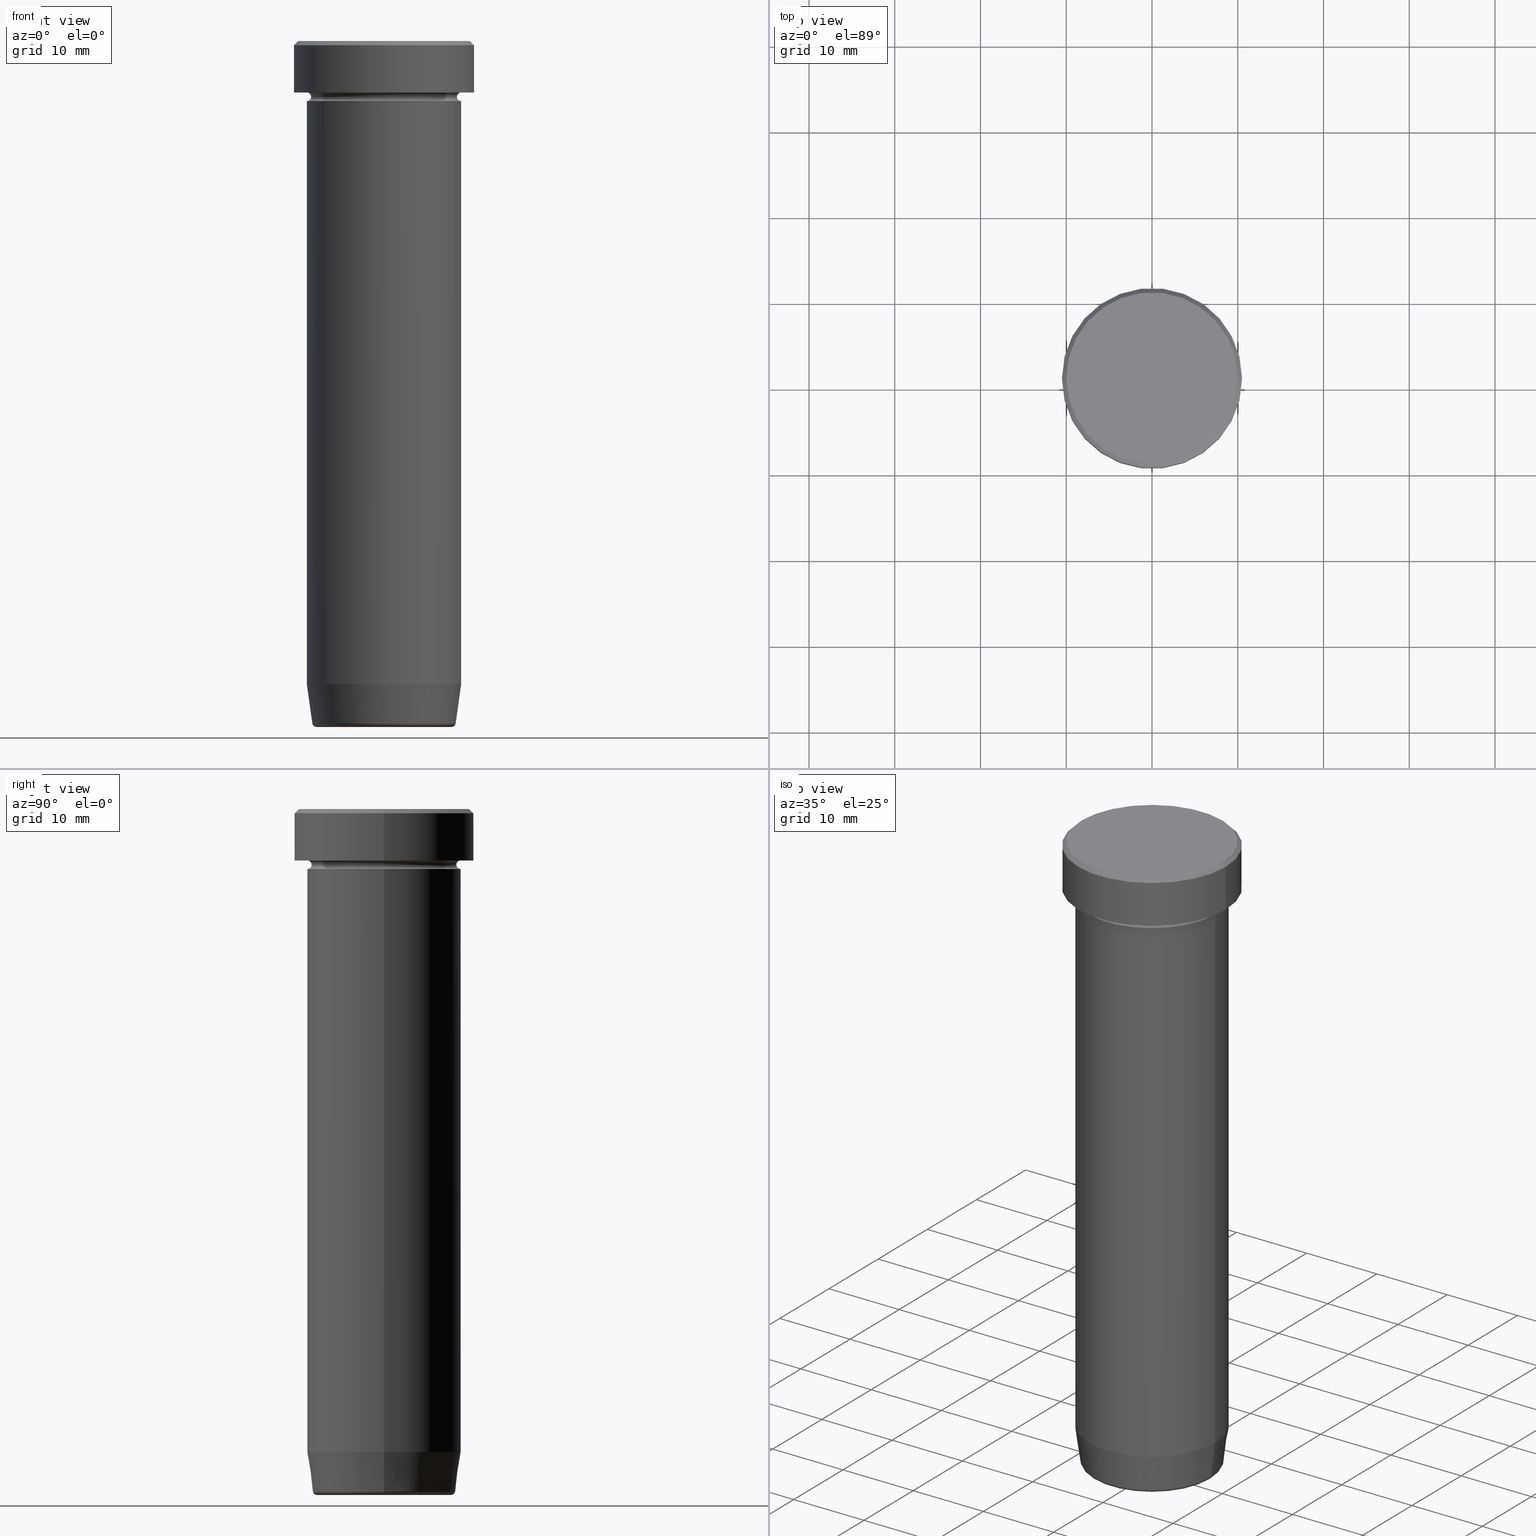
[diagram: canonical four-view strip — front | top / right | iso, engineering-drawing reading convention]
A machine part, canonical four-view strip (front | top / right | iso — engineering-drawing reading convention). The complete STEP part file that produces these views, byte-faithful:
ISO-10303-21;
HEADER;
FILE_DESCRIPTION (( 'STEP AP203' ),
    '1' );
FILE_NAME ('9424.STEP',
    '2024-01-02T19:34:15',
    ( '' ),
    ( '' ),
    'SwSTEP 2.0',
    'SolidWorks 2019',
    '' );
FILE_SCHEMA (( 'CONFIG_CONTROL_DESIGN' ));
ENDSEC;

DATA;
#1 = ORIENTED_EDGE ( 'NONE', *, *, #378, .T. ) ;
#2 = CC_DESIGN_SECURITY_CLASSIFICATION ( #102, ( #95 ) ) ;
#3 = DIRECTION ( 'NONE',  ( -0.000000000000000000, -0.000000000000000000, 1.000000000000000000 ) ) ;
#4 = ADVANCED_FACE ( 'NONE', ( #363 ), #333, .F. ) ;
#5 = CARTESIAN_POINT ( 'NONE',  ( 0.000000000000000000, 0.000000000000000000, -80.00000000000001421 ) ) ;
#6 = CIRCLE ( 'NONE', #346, 0.5000000000000004441 ) ;
#7 = CARTESIAN_POINT ( 'NONE',  ( 7.862652457579923038, 0.000000000000000000, -80.00000000000001421 ) ) ;
#8 = CIRCLE ( 'NONE', #453, 9.000000000000000000 ) ;
#9 = PERSON_AND_ORGANIZATION ( #331, #194 ) ;
#10 = ADVANCED_FACE ( 'NONE', ( #450, #589 ), #494, .T. ) ;
#11 = DIRECTION ( 'NONE',  ( -0.000000000000000000, -0.000000000000000000, 1.000000000000000000 ) ) ;
#12 = DIRECTION ( 'NONE',  ( 0.000000000000000000, 0.000000000000000000, -1.000000000000000000 ) ) ;
#13 = CC_DESIGN_DATE_AND_TIME_ASSIGNMENT ( #98, #595, ( #438 ) ) ;
#14 = ADVANCED_FACE ( 'NONE', ( #370 ), #325, .T. ) ;
#15 = CIRCLE ( 'NONE', #176, 10.50000000000000000 ) ;
#16 = AXIS2_PLACEMENT_3D ( 'NONE', #384, #11, #158 ) ;
#17 = DIRECTION ( 'NONE',  ( -0.000000000000000000, -0.000000000000000000, 1.000000000000000000 ) ) ;
#18 = CARTESIAN_POINT ( 'NONE',  ( 0.000000000000000000, 0.000000000000000000, -22.00000000000000000 ) ) ;
#19 = EDGE_LOOP ( 'NONE', ( #1, #318, #180, #432 ) ) ;
#20 = CC_DESIGN_PERSON_AND_ORGANIZATION_ASSIGNMENT ( #9, #231, ( #95 ) ) ;
#21 = DIRECTION ( 'NONE',  ( -0.7071067811865450192, 0.000000000000000000, -0.7071067811865500152 ) ) ;
#22 = CARTESIAN_POINT ( 'NONE',  ( -9.000000000000000000, 0.000000000000000000, -6.000000000000000000 ) ) ;
#23 = EDGE_LOOP ( 'NONE', ( #132, #369 ) ) ;
#24 = CYLINDRICAL_SURFACE ( 'NONE', #402, 10.50000000000000000 ) ;
#25 = CARTESIAN_POINT ( 'NONE',  ( 9.000000000000000000, 0.000000000000000000, 0.000000000000000000 ) ) ;
#26 = VERTEX_POINT ( 'NONE', #501 ) ;
#27 = CARTESIAN_POINT ( 'NONE',  ( 0.000000000000000000, 0.000000000000000000, -22.00000000000000000 ) ) ;
#28 = DIRECTION ( 'NONE',  ( 1.000000000000000000, 0.000000000000000000, 0.000000000000000000 ) ) ;
#29 = TOROIDAL_SURFACE ( 'NONE', #442, 9.000000000000000000, 0.5000000000000000000 ) ;
#30 = DIRECTION ( 'NONE',  ( -1.000000000000000000, 0.000000000000000000, -0.000000000000000000 ) ) ;
#31 = ORIENTED_EDGE ( 'NONE', *, *, #46, .F. ) ;
#32 = CARTESIAN_POINT ( 'NONE',  ( 0.000000000000000000, 0.000000000000000000, 0.000000000000000000 ) ) ;
#33 = CARTESIAN_POINT ( 'NONE',  ( 0.000000000000000000, 0.000000000000000000, -6.500000000000000888 ) ) ;
#34 = DIRECTION ( 'NONE',  ( -1.000000000000000000, 1.224646799147353454E-16, 0.000000000000000000 ) ) ;
#35 = APPROVAL_STATUS ( 'not_yet_approved' ) ;
#36 = VECTOR ( 'NONE', #253, 1000.000000000000000 ) ;
#37 = AXIS2_PLACEMENT_3D ( 'NONE', #582, #353, #212 ) ;
#38 = EDGE_LOOP ( 'NONE', ( #75, #94, #40, #298 ) ) ;
#39 = FACE_OUTER_BOUND ( 'NONE', #23, .T. ) ;
#40 = ORIENTED_EDGE ( 'NONE', *, *, #260, .T. ) ;
#41 = CLOSED_SHELL ( 'NONE', ( #398, #84, #4, #416, #42, #566, #86, #113, #10, #168, #294, #368, #268 ) ) ;
#42 = ADVANCED_FACE ( 'NONE', ( #281 ), #459, .T. ) ;
#43 = ORIENTED_EDGE ( 'NONE', *, *, #173, .F. ) ;
#44 = LINE ( 'NONE', #536, #115 ) ;
#45 = CALENDAR_DATE ( 2024, 2, 1 ) ;
#46 = EDGE_CURVE ( 'NONE', #436, #114, #159, .T. ) ;
#47 = PERSON_AND_ORGANIZATION ( #331, #194 ) ;
#48 = DIRECTION ( 'NONE',  ( 1.000000000000000000, 0.000000000000000000, 0.000000000000000000 ) ) ;
#49 = CIRCLE ( 'NONE', #377, 0.5000000000000004441 ) ;
#50 = CARTESIAN_POINT ( 'NONE',  ( 0.000000000000000000, 0.000000000000000000, 0.000000000000000000 ) ) ;
#51 = AXIS2_PLACEMENT_3D ( 'NONE', #283, #181, #227 ) ;
#52 = PERSON_AND_ORGANIZATION_ROLE ( 'creator' ) ;
#53 = FACE_OUTER_BOUND ( 'NONE', #579, .T. ) ;
#54 = ADVANCED_FACE ( 'NONE', ( #528 ), #355, .T. ) ;
#55 = EDGE_CURVE ( 'NONE', #258, #388, #386, .T. ) ;
#56 = EDGE_CURVE ( 'NONE', #185, #388, #127, .T. ) ;
#57 = CARTESIAN_POINT ( 'NONE',  ( -8.297295826488037207, 1.016125677548726751E-15, -80.00000000000001421 ) ) ;
#58 = CIRCLE ( 'NONE', #16, 9.000000000000000000 ) ;
#59 = DATE_AND_TIME ( #186, #171 ) ;
#60 = CARTESIAN_POINT ( 'NONE',  ( 0.000000000000000000, 0.000000000000000000, -6.500000000000000888 ) ) ;
#61 = EDGE_CURVE ( 'NONE', #228, #456, #478, .T. ) ;
#62 = DIRECTION ( 'NONE',  ( -0.000000000000000000, -0.000000000000000000, 1.000000000000000000 ) ) ;
#63 = DIRECTION ( 'NONE',  ( -0.000000000000000000, -0.000000000000000000, 1.000000000000000000 ) ) ;
#64 = APPROVAL_PERSON_ORGANIZATION ( #547, #561, #404 ) ;
#65 = ORIENTED_EDGE ( 'NONE', *, *, #286, .F. ) ;
#66 = DIRECTION ( 'NONE',  ( -0.000000000000000000, -0.000000000000000000, 1.000000000000000000 ) ) ;
#67 = DIRECTION ( 'NONE',  ( -0.1391731009600662428, 1.704378926181565534E-17, 0.9902680687415702510 ) ) ;
#68 = EDGE_LOOP ( 'NONE', ( #583, #172, #131, #266 ) ) ;
#69 = CIRCLE ( 'NONE', #107, 10.50000000000000000 ) ;
#70 = PLANE ( 'NONE',  #105 ) ;
#71 = DIRECTION ( 'NONE',  ( 1.000000000000000000, 0.000000000000000000, 0.000000000000000000 ) ) ;
#72 = ORIENTED_EDGE ( 'NONE', *, *, #297, .T. ) ;
#73 = DIRECTION ( 'NONE',  ( 1.000000000000000000, 0.000000000000000000, 0.000000000000000000 ) ) ;
#74 = EDGE_CURVE ( 'NONE', #134, #591, #120, .T. ) ;
#75 = ORIENTED_EDGE ( 'NONE', *, *, #150, .F. ) ;
#76 = CARTESIAN_POINT ( 'NONE',  ( 0.000000000000000000, 0.000000000000000000, -6.000000000000000000 ) ) ;
#77 = DIRECTION ( 'NONE',  ( 0.000000000000000000, 0.000000000000000000, -1.000000000000000000 ) ) ;
#78 = DIRECTION ( 'NONE',  ( 0.7071067811865450192, 8.659560562354902043E-17, -0.7071067811865500152 ) ) ;
#79 = AXIS2_PLACEMENT_3D ( 'NONE', #76, #256, #273 ) ;
#80 = FACE_OUTER_BOUND ( 'NONE', #510, .T. ) ;
#81 = AXIS2_PLACEMENT_3D ( 'NONE', #32, #537, #73 ) ;
#82 = MANIFOLD_SOLID_BREP ( 'Zaoblit4', #593 ) ;
#83 = ORIENTED_EDGE ( 'NONE', *, *, #379, .F. ) ;
#84 = ADVANCED_FACE ( 'NONE', ( #219 ), #259, .F. ) ;
#85 = PRODUCT ( '9424', '9424', '', ( #191 ) ) ;
#86 = ADVANCED_FACE ( 'NONE', ( #396 ), #437, .T. ) ;
#87 = ORIENTED_EDGE ( 'NONE', *, *, #471, .F. ) ;
#88 = VERTEX_POINT ( 'NONE', #246 ) ;
#89 = CIRCLE ( 'NONE', #493, 10.00000000000000178 ) ;
#90 = AXIS2_PLACEMENT_3D ( 'NONE', #129, #178, #345 ) ;
#91 = ORIENTED_EDGE ( 'NONE', *, *, #257, .T. ) ;
#92 = PERSON_AND_ORGANIZATION_ROLE ( 'design_owner' ) ;
#93 = EDGE_CURVE ( 'NONE', #477, #456, #205, .T. ) ;
#94 = ORIENTED_EDGE ( 'NONE', *, *, #441, .T. ) ;
#95 = PRODUCT_DEFINITION_FORMATION_WITH_SPECIFIED_SOURCE ( 'LIBOVOLN�', '', #85, .NOT_KNOWN. ) ;
#96 = DIRECTION ( 'NONE',  ( -0.000000000000000000, -0.000000000000000000, 1.000000000000000000 ) ) ;
#97 = DIRECTION ( 'NONE',  ( 0.000000000000000000, 0.000000000000000000, -1.000000000000000000 ) ) ;
#98 = DATE_AND_TIME ( #592, #276 ) ;
#99 = CIRCLE ( 'NONE', #534, 9.000000000000000000 ) ;
#100 = APPROVAL_DATE_TIME ( #508, #570 ) ;
#101 = LINE ( 'NONE', #57, #317 ) ;
#102 = SECURITY_CLASSIFICATION ( '', '', #288 ) ;
#103 = DIRECTION ( 'NONE',  ( -1.000000000000000000, 1.224646799147353454E-16, 0.000000000000000000 ) ) ;
#104 = ORIENTED_EDGE ( 'NONE', *, *, #152, .F. ) ;
#105 = AXIS2_PLACEMENT_3D ( 'NONE', #110, #211, #520 ) ;
#106 = DIRECTION ( 'NONE',  ( -0.000000000000000000, -0.000000000000000000, 1.000000000000000000 ) ) ;
#107 = AXIS2_PLACEMENT_3D ( 'NONE', #464, #12, #289 ) ;
#108 = CARTESIAN_POINT ( 'NONE',  ( 0.000000000000000000, 0.000000000000000000, 0.000000000000000000 ) ) ;
#109 = CARTESIAN_POINT ( 'NONE',  ( 0.000000000000000000, 0.000000000000000000, -6.000000000000000000 ) ) ;
#110 = CARTESIAN_POINT ( 'NONE',  ( 0.000000000000000000, 3.469446951953614189E-15, -80.00000000000001421 ) ) ;
#111 = APPLICATION_CONTEXT ( 'configuration controlled 3d designs of mechanical parts and assemblies' ) ;
#112 = DIRECTION ( 'NONE',  ( -1.000000000000000000, 0.000000000000000000, 0.000000000000000000 ) ) ;
#113 = ADVANCED_FACE ( 'NONE', ( #518 ), #24, .T. ) ;
#114 = VERTEX_POINT ( 'NONE', #157 ) ;
#115 = VECTOR ( 'NONE', #401, 1000.000000000000000 ) ;
#116 = AXIS2_PLACEMENT_3D ( 'NONE', #5, #77, #166 ) ;
#117 = ADVANCED_FACE ( 'NONE', ( #341 ), #70, .F. ) ;
#118 = CARTESIAN_POINT ( 'NONE',  ( 8.499999999999998224, 0.000000000000000000, -6.500000000000000888 ) ) ;
#119 = EDGE_LOOP ( 'NONE', ( #189, #385, #483, #222 ) ) ;
#120 = LINE ( 'NONE', #350, #533 ) ;
#121 = CARTESIAN_POINT ( 'NONE',  ( -9.000000000000000000, 1.102182119232617714E-15, 0.000000000000000000 ) ) ;
#122 = LOCAL_TIME ( 20, 34, 15.00000000000000000, #196 ) ;
#123 = EDGE_LOOP ( 'NONE', ( #226, #303 ) ) ;
#124 = DIRECTION ( 'NONE',  ( 1.000000000000000000, 0.000000000000000000, 0.000000000000000000 ) ) ;
#125 = DIRECTION ( 'NONE',  ( -0.000000000000000000, -0.000000000000000000, 1.000000000000000000 ) ) ;
#126 = ORIENTED_EDGE ( 'NONE', *, *, #338, .T. ) ;
#127 = CIRCLE ( 'NONE', #290, 9.000000000000000000 ) ;
#128 = AXIS2_PLACEMENT_3D ( 'NONE', #223, #310, #263 ) ;
#129 = CARTESIAN_POINT ( 'NONE',  ( 9.000000000000000000, 0.000000000000000000, -6.500000000000000888 ) ) ;
#130 = AXIS2_PLACEMENT_3D ( 'NONE', #235, #421, #300 ) ;
#131 = ORIENTED_EDGE ( 'NONE', *, *, #93, .T. ) ;
#132 = ORIENTED_EDGE ( 'NONE', *, *, #56, .T. ) ;
#133 = CARTESIAN_POINT ( 'NONE',  ( 9.000000000000000000, 0.000000000000000000, 0.000000000000000000 ) ) ;
#134 = VERTEX_POINT ( 'NONE', #250 ) ;
#135 = DIRECTION ( 'NONE',  ( 1.000000000000000000, 0.000000000000000000, 0.000000000000000000 ) ) ;
#136 = CIRCLE ( 'NONE', #460, 0.5000000000000004441 ) ;
#137 = ORIENTED_EDGE ( 'NONE', *, *, #445, .T. ) ;
#138 = ORIENTED_EDGE ( 'NONE', *, *, #375, .T. ) ;
#139 = LOCAL_TIME ( 20, 34, 15.00000000000000000, #184 ) ;
#140 = CYLINDRICAL_SURFACE ( 'NONE', #513, 9.000000000000000000 ) ;
#141 = PLANE ( 'NONE',  #51 ) ;
#142 = UNCERTAINTY_MEASURE_WITH_UNIT (LENGTH_MEASURE( 1.000000000000000082E-05 ), #554, 'distance_accuracy_value', 'NONE');
#143 = EDGE_CURVE ( 'NONE', #311, #477, #241, .T. ) ;
#144 = DIRECTION ( 'NONE',  ( 0.000000000000000000, 0.000000000000000000, -1.000000000000000000 ) ) ;
#145 = AXIS2_PLACEMENT_3D ( 'NONE', #307, #429, #215 ) ;
#146 = CIRCLE ( 'NONE', #410, 9.000000000000000000 ) ;
#147 = CARTESIAN_POINT ( 'NONE',  ( 0.000000000000000000, 0.000000000000000000, -75.00000000000001421 ) ) ;
#148 = CARTESIAN_POINT ( 'NONE',  ( -9.000000000000000000, 0.000000000000000000, -6.500000000000000888 ) ) ;
#149 = ORIENTED_EDGE ( 'NONE', *, *, #413, .T. ) ;
#150 = EDGE_CURVE ( 'NONE', #472, #512, #49, .T. ) ;
#151 = DIRECTION ( 'NONE',  ( -0.000000000000000000, -0.000000000000000000, 1.000000000000000000 ) ) ;
#152 = EDGE_CURVE ( 'NONE', #456, #591, #15, .T. ) ;
#153 = AXIS2_PLACEMENT_3D ( 'NONE', #148, #237, #144 ) ;
#154 = AXIS2_PLACEMENT_3D ( 'NONE', #479, #435, #30 ) ;
#155 = FACE_OUTER_BOUND ( 'NONE', #38, .T. ) ;
#156 = ORIENTED_EDGE ( 'NONE', *, *, #375, .F. ) ;
#157 = CARTESIAN_POINT ( 'NONE',  ( -8.357786491950706775, 1.062857883382529722E-15, -79.56958655048006790 ) ) ;
#158 = DIRECTION ( 'NONE',  ( 1.000000000000000000, 0.000000000000000000, 0.000000000000000000 ) ) ;
#159 = CIRCLE ( 'NONE', #574, 8.357786491950706775 ) ;
#160 = EDGE_LOOP ( 'NONE', ( #349, #137 ) ) ;
#161 = EDGE_CURVE ( 'NONE', #512, #487, #381, .T. ) ;
#162 = DIRECTION ( 'NONE',  ( 0.000000000000000000, -0.000000000000000000, 1.000000000000000000 ) ) ;
#163 = DIRECTION ( 'NONE',  ( 0.000000000000000000, 0.000000000000000000, -1.000000000000000000 ) ) ;
#164 = CIRCLE ( 'NONE', #248, 8.357786491950706775 ) ;
#165 = CARTESIAN_POINT ( 'NONE',  ( 0.000000000000000000, 0.000000000000000000, -0.5000000000000023315 ) ) ;
#166 = DIRECTION ( 'NONE',  ( 1.000000000000000000, 0.000000000000000000, 0.000000000000000000 ) ) ;
#167 = VERTEX_POINT ( 'NONE', #585 ) ;
#168 = ADVANCED_FACE ( 'NONE', ( #454 ), #190, .T. ) ;
#169 = DIRECTION ( 'NONE',  ( -0.000000000000000000, -0.000000000000000000, 1.000000000000000000 ) ) ;
#170 = DIRECTION ( 'NONE',  ( -0.000000000000000000, -0.000000000000000000, 1.000000000000000000 ) ) ;
#171 = LOCAL_TIME ( 20, 34, 15.00000000000000000, #278 ) ;
#172 = ORIENTED_EDGE ( 'NONE', *, *, #143, .T. ) ;
#173 = EDGE_CURVE ( 'NONE', #436, #491, #44, .T. ) ;
#174 = DIRECTION ( 'NONE',  ( 0.000000000000000000, 0.000000000000000000, -1.000000000000000000 ) ) ;
#175 = EDGE_LOOP ( 'NONE', ( #255, #524, #31, #332 ) ) ;
#176 = AXIS2_PLACEMENT_3D ( 'NONE', #165, #576, #481 ) ;
#177 = VECTOR ( 'NONE', #216, 1000.000000000000000 ) ;
#178 = DIRECTION ( 'NONE',  ( 0.000000000000000000, -1.000000000000000000, 0.000000000000000000 ) ) ;
#179 = DIRECTION ( 'NONE',  ( 1.000000000000000000, 0.000000000000000000, 0.000000000000000000 ) ) ;
#180 = ORIENTED_EDGE ( 'NONE', *, *, #374, .F. ) ;
#181 = DIRECTION ( 'NONE',  ( 0.000000000000000000, 0.000000000000000000, -1.000000000000000000 ) ) ;
#182 = ORIENTED_EDGE ( 'NONE', *, *, #588, .T. ) ;
#183 = EDGE_CURVE ( 'NONE', #543, #207, #6, .T. ) ;
#184 = COORDINATED_UNIVERSAL_TIME_OFFSET ( 1, 0, .AHEAD. ) ;
#185 = VERTEX_POINT ( 'NONE', #590 ) ;
#186 = CALENDAR_DATE ( 2024, 2, 1 ) ;
#187 = DIRECTION ( 'NONE',  ( -0.000000000000000000, -0.000000000000000000, 1.000000000000000000 ) ) ;
#188 = CIRCLE ( 'NONE', #419, 8.499999999999998224 ) ;
#189 = ORIENTED_EDGE ( 'NONE', *, *, #378, .F. ) ;
#190 = CYLINDRICAL_SURFACE ( 'NONE', #128, 9.000000000000000000 ) ;
#191 = MECHANICAL_CONTEXT ( 'NONE', #444, 'mechanical' ) ;
#192 = FACE_OUTER_BOUND ( 'NONE', #340, .T. ) ;
#193 = CARTESIAN_POINT ( 'NONE',  ( 0.000000000000000000, 0.000000000000000000, -79.50000000000001421 ) ) ;
#194 = ORGANIZATION ( 'NEUR�EN�', 'NEUR�EN�', '' ) ;
#195 = APPROVAL_STATUS ( 'not_yet_approved' ) ;
#196 = COORDINATED_UNIVERSAL_TIME_OFFSET ( 1, 0, .AHEAD. ) ;
#197 = AXIS2_PLACEMENT_3D ( 'NONE', #475, #163, #71 ) ;
#198 = SHAPE_DEFINITION_REPRESENTATION ( #312, #372 ) ;
#199 = CARTESIAN_POINT ( 'NONE',  ( 0.000000000000000000, 0.000000000000000000, 0.000000000000000000 ) ) ;
#200 = FACE_OUTER_BOUND ( 'NONE', #269, .T. ) ;
#201 = AXIS2_PLACEMENT_3D ( 'NONE', #327, #503, #334 ) ;
#202 = CONICAL_SURFACE ( 'NONE', #504, 8.297295826488037207, 0.1396263401595471687 ) ;
#203 = AXIS2_PLACEMENT_3D ( 'NONE', #199, #514, #559 ) ;
#204 = VERTEX_POINT ( 'NONE', #362 ) ;
#205 = LINE ( 'NONE', #573, #36 ) ;
#206 = DIRECTION ( 'NONE',  ( 1.000000000000000000, 0.000000000000000000, 0.000000000000000000 ) ) ;
#207 = VERTEX_POINT ( 'NONE', #551 ) ;
#208 = DIRECTION ( 'NONE',  ( -1.224646799147353207E-16, 1.000000000000000000, 0.000000000000000000 ) ) ;
#209 = DIRECTION ( 'NONE',  ( 0.000000000000000000, -1.000000000000000000, 0.000000000000000000 ) ) ;
#210 = EDGE_LOOP ( 'NONE', ( #238, #403, #552, #43 ) ) ;
#211 = DIRECTION ( 'NONE',  ( 0.000000000000000000, -0.000000000000000000, 1.000000000000000000 ) ) ;
#212 = DIRECTION ( 'NONE',  ( 1.000000000000000000, 0.000000000000000000, 0.000000000000000000 ) ) ;
#213 = ORIENTED_EDGE ( 'NONE', *, *, #277, .T. ) ;
#214 = AXIS2_PLACEMENT_3D ( 'NONE', #50, #169, #425 ) ;
#215 = DIRECTION ( 'NONE',  ( 1.000000000000000000, 0.000000000000000000, 0.000000000000000000 ) ) ;
#216 = DIRECTION ( 'NONE',  ( -0.000000000000000000, -0.000000000000000000, 1.000000000000000000 ) ) ;
#217 = DIRECTION ( 'NONE',  ( 1.000000000000000000, 0.000000000000000000, 0.000000000000000000 ) ) ;
#218 = ORIENTED_EDGE ( 'NONE', *, *, #321, .F. ) ;
#219 = FACE_OUTER_BOUND ( 'NONE', #19, .T. ) ;
#220 = CYLINDRICAL_SURFACE ( 'NONE', #81, 9.000000000000000000 ) ;
#221 = CC_DESIGN_APPROVAL ( #570, ( #102 ) ) ;
#222 = ORIENTED_EDGE ( 'NONE', *, *, #538, .F. ) ;
#223 = CARTESIAN_POINT ( 'NONE',  ( 0.000000000000000000, 0.000000000000000000, 0.000000000000000000 ) ) ;
#224 = DIRECTION ( 'NONE',  ( -0.000000000000000000, -0.000000000000000000, 1.000000000000000000 ) ) ;
#225 = CIRCLE ( 'NONE', #116, 7.862652457579923038 ) ;
#226 = ORIENTED_EDGE ( 'NONE', *, *, #577, .F. ) ;
#227 = DIRECTION ( 'NONE',  ( -1.000000000000000000, 0.000000000000000000, -0.000000000000000000 ) ) ;
#228 = VERTEX_POINT ( 'NONE', #509 ) ;
#229 = CALENDAR_DATE ( 2024, 2, 1 ) ;
#230 = VERTEX_POINT ( 'NONE', #7 ) ;
#231 = PERSON_AND_ORGANIZATION_ROLE ( 'design_supplier' ) ;
#232 =( NAMED_UNIT ( * ) SI_UNIT ( $, .STERADIAN. ) SOLID_ANGLE_UNIT ( ) );
#233 = CIRCLE ( 'NONE', #282, 10.00000000000000178 ) ;
#234 = CIRCLE ( 'NONE', #197, 7.862652457579923038 ) ;
#235 = CARTESIAN_POINT ( 'NONE',  ( 0.000000000000000000, 0.000000000000000000, -7.000000000000000000 ) ) ;
#236 = DIRECTION ( 'NONE',  ( -0.000000000000000000, -0.000000000000000000, 1.000000000000000000 ) ) ;
#237 = DIRECTION ( 'NONE',  ( -0.000000000000000000, -1.000000000000000000, -0.000000000000000000 ) ) ;
#238 = ORIENTED_EDGE ( 'NONE', *, *, #46, .T. ) ;
#239 = APPROVAL_STATUS ( 'not_yet_approved' ) ;
#240 = DIRECTION ( 'NONE',  ( -0.000000000000000000, -0.000000000000000000, 1.000000000000000000 ) ) ;
#241 = CIRCLE ( 'NONE', #145, 10.50000000000000000 ) ;
#242 = ORIENTED_EDGE ( 'NONE', *, *, #577, .T. ) ;
#243 = DIRECTION ( 'NONE',  ( -0.000000000000000000, -0.000000000000000000, 1.000000000000000000 ) ) ;
#244 = AXIS2_PLACEMENT_3D ( 'NONE', #323, #97, #411 ) ;
#245 = ORIENTED_EDGE ( 'NONE', *, *, #93, .F. ) ;
#246 = CARTESIAN_POINT ( 'NONE',  ( -7.862652457579923038, 9.932154320153869973E-16, -80.00000000000001421 ) ) ;
#247 = FACE_OUTER_BOUND ( 'NONE', #400, .T. ) ;
#248 = AXIS2_PLACEMENT_3D ( 'NONE', #351, #125, #485 ) ;
#249 = ORIENTED_EDGE ( 'NONE', *, *, #563, .T. ) ;
#250 = CARTESIAN_POINT ( 'NONE',  ( -10.00000000000000178, 0.000000000000000000, 0.000000000000000000 ) ) ;
#251 = ORIENTED_EDGE ( 'NONE', *, *, #563, .F. ) ;
#252 = PRODUCT_RELATED_PRODUCT_CATEGORY ( 'detail', '', ( #85 ) ) ;
#253 = DIRECTION ( 'NONE',  ( -0.000000000000000000, -0.000000000000000000, 1.000000000000000000 ) ) ;
#254 = CARTESIAN_POINT ( 'NONE',  ( -8.499999999999998224, 1.071565949253933927E-15, -6.500000000000000888 ) ) ;
#255 = ORIENTED_EDGE ( 'NONE', *, *, #445, .F. ) ;
#256 = DIRECTION ( 'NONE',  ( -0.000000000000000000, -0.000000000000000000, 1.000000000000000000 ) ) ;
#257 = EDGE_CURVE ( 'NONE', #228, #134, #89, .T. ) ;
#258 = VERTEX_POINT ( 'NONE', #422 ) ;
#259 = TOROIDAL_SURFACE ( 'NONE', #315, 9.000000000000000000, 0.5000000000000000000 ) ;
#260 = EDGE_CURVE ( 'NONE', #543, #487, #409, .T. ) ;
#261 = CIRCLE ( 'NONE', #564, 8.499999999999998224 ) ;
#262 = ORIENTED_EDGE ( 'NONE', *, *, #517, .T. ) ;
#263 = DIRECTION ( 'NONE',  ( 1.000000000000000000, 0.000000000000000000, 0.000000000000000000 ) ) ;
#264 = CARTESIAN_POINT ( 'NONE',  ( 0.000000000000000000, 0.000000000000000000, -80.00000000000001421 ) ) ;
#265 = APPROVAL_PERSON_ORGANIZATION ( #274, #584, #267 ) ;
#266 = ORIENTED_EDGE ( 'NONE', *, *, #152, .T. ) ;
#267 = APPROVAL_ROLE ( '' ) ;
#268 = ADVANCED_FACE ( 'NONE', ( #53 ), #562, .T. ) ;
#269 = EDGE_LOOP ( 'NONE', ( #335, #72, #357, #424 ) ) ;
#270 = AXIS2_PLACEMENT_3D ( 'NONE', #308, #162, #469 ) ;
#271 = AXIS2_PLACEMENT_3D ( 'NONE', #360, #415, #48 ) ;
#272 = DIRECTION ( 'NONE',  ( 1.000000000000000000, 0.000000000000000000, 0.000000000000000000 ) ) ;
#273 = DIRECTION ( 'NONE',  ( -1.000000000000000000, 0.000000000000000000, 0.000000000000000000 ) ) ;
#274 = PERSON_AND_ORGANIZATION ( #331, #194 ) ;
#275 = ORIENTED_EDGE ( 'NONE', *, *, #558, .T. ) ;
#276 = LOCAL_TIME ( 20, 34, 15.00000000000000000, #373 ) ;
#277 = EDGE_CURVE ( 'NONE', #134, #228, #233, .T. ) ;
#278 = COORDINATED_UNIVERSAL_TIME_OFFSET ( 1, 0, .AHEAD. ) ;
#279 = MANIFOLD_SOLID_BREP ( 'Zkosen�1', #41 ) ;
#280 = ADVANCED_FACE ( 'NONE', ( #200 ), #140, .T. ) ;
#281 = FACE_OUTER_BOUND ( 'NONE', #392, .T. ) ;
#282 = AXIS2_PLACEMENT_3D ( 'NONE', #417, #106, #292 ) ;
#283 = CARTESIAN_POINT ( 'NONE',  ( 0.000000000000000000, 0.000000000000000000, -22.00000000000000000 ) ) ;
#284 = CIRCLE ( 'NONE', #575, 9.000000000000000000 ) ;
#285 = LINE ( 'NONE', #330, #302 ) ;
#286 = EDGE_CURVE ( 'NONE', #114, #258, #101, .T. ) ;
#287 = CC_DESIGN_PERSON_AND_ORGANIZATION_ASSIGNMENT ( #47, #92, ( #85 ) ) ;
#288 = SECURITY_CLASSIFICATION_LEVEL ( 'unclassified' ) ;
#289 = DIRECTION ( 'NONE',  ( 1.000000000000000000, 0.000000000000000000, 0.000000000000000000 ) ) ;
#290 = AXIS2_PLACEMENT_3D ( 'NONE', #27, #17, #124 ) ;
#291 = CIRCLE ( 'NONE', #130, 9.000000000000000000 ) ;
#292 = DIRECTION ( 'NONE',  ( 1.000000000000000000, 0.000000000000000000, 0.000000000000000000 ) ) ;
#293 = DIRECTION ( 'NONE',  ( -0.000000000000000000, -0.000000000000000000, 1.000000000000000000 ) ) ;
#294 = ADVANCED_FACE ( 'NONE', ( #489 ), #587, .F. ) ;
#295 = CARTESIAN_POINT ( 'NONE',  ( 0.000000000000000000, 0.000000000000000000, -79.50000000000001421 ) ) ;
#296 = DIRECTION ( 'NONE',  ( 1.000000000000000000, 0.000000000000000000, 0.000000000000000000 ) ) ;
#297 = EDGE_CURVE ( 'NONE', #258, #491, #99, .T. ) ;
#298 = ORIENTED_EDGE ( 'NONE', *, *, #161, .F. ) ;
#299 = DIRECTION ( 'NONE',  ( 1.000000000000000000, 0.000000000000000000, 0.000000000000000000 ) ) ;
#300 = DIRECTION ( 'NONE',  ( 1.000000000000000000, 0.000000000000000000, 0.000000000000000000 ) ) ;
#301 = CC_DESIGN_DATE_AND_TIME_ASSIGNMENT ( #59, #365, ( #102 ) ) ;
#302 = VECTOR ( 'NONE', #240, 1000.000000000000000 ) ;
#303 = ORIENTED_EDGE ( 'NONE', *, *, #143, .F. ) ;
#304 = DIRECTION ( 'NONE',  ( -0.000000000000000000, -0.000000000000000000, 1.000000000000000000 ) ) ;
#305 = FACE_OUTER_BOUND ( 'NONE', #210, .T. ) ;
#306 = ORIENTED_EDGE ( 'NONE', *, *, #183, .F. ) ;
#307 = CARTESIAN_POINT ( 'NONE',  ( 0.000000000000000000, 0.000000000000000000, -6.000000000000000000 ) ) ;
#308 = CARTESIAN_POINT ( 'NONE',  ( 0.000000000000000000, 0.000000000000000000, 0.000000000000000000 ) ) ;
#309 = CIRCLE ( 'NONE', #90, 0.5000000000000004441 ) ;
#310 = DIRECTION ( 'NONE',  ( -0.000000000000000000, -0.000000000000000000, 1.000000000000000000 ) ) ;
#311 = VERTEX_POINT ( 'NONE', #539 ) ;
#312 = PRODUCT_DEFINITION_SHAPE ( 'NONE', 'NONE',  #438 ) ;
#313 = EDGE_LOOP ( 'NONE', ( #275, #343, #156, #364 ) ) ;
#314 = AXIS2_PLACEMENT_3D ( 'NONE', #33, #224, #272 ) ;
#315 = AXIS2_PLACEMENT_3D ( 'NONE', #525, #352, #434 ) ;
#316 = ADVANCED_FACE ( 'NONE', ( #192 ), #328, .T. ) ;
#317 = VECTOR ( 'NONE', #67, 1000.000000000000000 ) ;
#318 = ORIENTED_EDGE ( 'NONE', *, *, #150, .T. ) ;
#319 = PERSON_AND_ORGANIZATION_ROLE ( 'classification_officer' ) ;
#320 = CARTESIAN_POINT ( 'NONE',  ( -10.50000000000000000, 1.285879139104720831E-15, -0.5000000000000023315 ) ) ;
#321 = EDGE_CURVE ( 'NONE', #207, #204, #291, .T. ) ;
#322 = CC_DESIGN_APPROVAL ( #584, ( #438 ) ) ;
#323 = CARTESIAN_POINT ( 'NONE',  ( 0.000000000000000000, 10.50000000000000000, -6.000000000000000000 ) ) ;
#324 = CARTESIAN_POINT ( 'NONE',  ( 0.000000000000000000, 0.000000000000000000, 0.000000000000000000 ) ) ;
#325 = TOROIDAL_SURFACE ( 'NONE', #399, 7.862652457579923038, 0.5000000000000000000 ) ;
#326 = CARTESIAN_POINT ( 'NONE',  ( 0.000000000000000000, 0.000000000000000000, 0.000000000000000000 ) ) ;
#327 = CARTESIAN_POINT ( 'NONE',  ( 0.000000000000000000, 0.000000000000000000, 0.000000000000000000 ) ) ;
#328 = CONICAL_SURFACE ( 'NONE', #271, 8.297295826488037207, 0.1396263401595471687 ) ;
#329 = ORIENTED_EDGE ( 'NONE', *, *, #61, .F. ) ;
#330 = CARTESIAN_POINT ( 'NONE',  ( -10.50000000000000000, 1.285879139104720831E-15, 0.000000000000000000 ) ) ;
#331 = PERSON ( 'NEUR�EN�', 'NEUR�EN�', 'NEUR�EN�', ('NEUR�EN�'), ('NEUR�EN�'), ('NEUR�EN�') ) ;
#332 = ORIENTED_EDGE ( 'NONE', *, *, #517, .F. ) ;
#333 = TOROIDAL_SURFACE ( 'NONE', #314, 9.000000000000000000, 0.5000000000000000000 ) ;
#334 = DIRECTION ( 'NONE',  ( -1.000000000000000000, 0.000000000000000000, 0.000000000000000000 ) ) ;
#335 = ORIENTED_EDGE ( 'NONE', *, *, #55, .F. ) ;
#336 = DIRECTION ( 'NONE',  ( -1.000000000000000000, 0.000000000000000000, 0.000000000000000000 ) ) ;
#337 = VECTOR ( 'NONE', #78, 1000.000000000000000 ) ;
#338 = EDGE_CURVE ( 'NONE', #591, #456, #69, .T. ) ;
#339 = DIRECTION ( 'NONE',  ( 1.224646799147353207E-16, 1.000000000000000000, 0.000000000000000000 ) ) ;
#340 = EDGE_LOOP ( 'NONE', ( #65, #249, #447, #507 ) ) ;
#341 = FACE_OUTER_BOUND ( 'NONE', #160, .T. ) ;
#342 = CARTESIAN_POINT ( 'NONE',  ( 8.357786491950706775, 0.000000000000000000, -79.56958655048006790 ) ) ;
#343 = ORIENTED_EDGE ( 'NONE', *, *, #471, .T. ) ;
#344 = DIRECTION ( 'NONE',  ( -0.000000000000000000, -0.000000000000000000, 1.000000000000000000 ) ) ;
#345 = DIRECTION ( 'NONE',  ( 0.000000000000000000, 0.000000000000000000, -1.000000000000000000 ) ) ;
#346 = AXIS2_PLACEMENT_3D ( 'NONE', #448, #451, #34 ) ;
#347 = DIRECTION ( 'NONE',  ( 1.000000000000000000, 0.000000000000000000, 0.000000000000000000 ) ) ;
#348 = LINE ( 'NONE', #25, #177 ) ;
#349 = ORIENTED_EDGE ( 'NONE', *, *, #529, .T. ) ;
#350 = CARTESIAN_POINT ( 'NONE',  ( -10.00000000000000178, 0.000000000000000000, 0.000000000000000000 ) ) ;
#351 = CARTESIAN_POINT ( 'NONE',  ( 0.000000000000000000, 0.000000000000000000, -79.56958655048006790 ) ) ;
#352 = DIRECTION ( 'NONE',  ( 0.000000000000000000, 0.000000000000000000, -1.000000000000000000 ) ) ;
#353 = DIRECTION ( 'NONE',  ( -0.000000000000000000, -0.000000000000000000, 1.000000000000000000 ) ) ;
#354 = DESIGN_CONTEXT ( 'detailed design', #111, 'design' ) ;
#355 = TOROIDAL_SURFACE ( 'NONE', #440, 7.862652457579923038, 0.5000000000000000000 ) ;
#356 = EDGE_CURVE ( 'NONE', #311, #591, #285, .T. ) ;
#357 = ORIENTED_EDGE ( 'NONE', *, *, #474, .T. ) ;
#358 = CIRCLE ( 'NONE', #555, 9.000000000000000000 ) ;
#359 = DIRECTION ( 'NONE',  ( -0.000000000000000000, -0.000000000000000000, 1.000000000000000000 ) ) ;
#360 = CARTESIAN_POINT ( 'NONE',  ( 0.000000000000000000, 0.000000000000000000, -80.00000000000001421 ) ) ;
#361 = ORIENTED_EDGE ( 'NONE', *, *, #466, .F. ) ;
#362 = CARTESIAN_POINT ( 'NONE',  ( 9.000000000000000000, 0.000000000000000000, -7.000000000000000000 ) ) ;
#363 = FACE_OUTER_BOUND ( 'NONE', #119, .T. ) ;
#364 = ORIENTED_EDGE ( 'NONE', *, *, #588, .F. ) ;
#365 = DATE_TIME_ROLE ( 'classification_date' ) ;
#366 = AXIS2_PLACEMENT_3D ( 'NONE', #462, #463, #217 ) ;
#367 = PERSON_AND_ORGANIZATION_ROLE ( 'creator' ) ;
#368 = ADVANCED_FACE ( 'NONE', ( #155 ), #29, .F. ) ;
#369 = ORIENTED_EDGE ( 'NONE', *, *, #430, .T. ) ;
#370 = FACE_OUTER_BOUND ( 'NONE', #175, .T. ) ;
#371 = ORIENTED_EDGE ( 'NONE', *, *, #538, .T. ) ;
#372 = ADVANCED_BREP_SHAPE_REPRESENTATION ( '9424', ( #279, #82, #580 ), #480 ) ;
#373 = COORDINATED_UNIVERSAL_TIME_OFFSET ( 1, 0, .AHEAD. ) ;
#374 = EDGE_CURVE ( 'NONE', #487, #512, #8, .T. ) ;
#375 = EDGE_CURVE ( 'NONE', #204, #207, #58, .T. ) ;
#376 = COORDINATED_UNIVERSAL_TIME_OFFSET ( 1, 0, .AHEAD. ) ;
#377 = AXIS2_PLACEMENT_3D ( 'NONE', #393, #208, #389 ) ;
#378 = EDGE_CURVE ( 'NONE', #543, #472, #188, .T. ) ;
#379 = EDGE_CURVE ( 'NONE', #88, #114, #598, .T. ) ;
#380 = CARTESIAN_POINT ( 'NONE',  ( -9.000000000000000000, 1.102182119232617714E-15, -22.00000000000000000 ) ) ;
#381 = CIRCLE ( 'NONE', #79, 9.000000000000000000 ) ;
#382 = CONICAL_SURFACE ( 'NONE', #203, 10.00000000000000178, 0.7853981633974447263 ) ;
#383 = CARTESIAN_POINT ( 'NONE',  ( 0.000000000000000000, 0.000000000000000000, 0.000000000000000000 ) ) ;
#384 = CARTESIAN_POINT ( 'NONE',  ( 0.000000000000000000, 0.000000000000000000, -7.000000000000000000 ) ) ;
#385 = ORIENTED_EDGE ( 'NONE', *, *, #183, .T. ) ;
#386 = LINE ( 'NONE', #484, #521 ) ;
#387 = DIRECTION ( 'NONE',  ( -0.000000000000000000, -0.000000000000000000, 1.000000000000000000 ) ) ;
#388 = VERTEX_POINT ( 'NONE', #380 ) ;
#389 = DIRECTION ( 'NONE',  ( -1.000000000000000000, -1.224646799147353454E-16, 0.000000000000000000 ) ) ;
#390 = LINE ( 'NONE', #133, #495 ) ;
#391 = VECTOR ( 'NONE', #387, 1000.000000000000000 ) ;
#392 = EDGE_LOOP ( 'NONE', ( #242, #535, #126, #245 ) ) ;
#393 = CARTESIAN_POINT ( 'NONE',  ( 9.000000000000000000, 1.102182119232617714E-15, -6.500000000000000888 ) ) ;
#394 = CARTESIAN_POINT ( 'NONE',  ( 10.50000000000000000, 0.000000000000000000, -6.000000000000000000 ) ) ;
#395 = ORIENTED_EDGE ( 'NONE', *, *, #55, .T. ) ;
#396 = FACE_OUTER_BOUND ( 'NONE', #420, .T. ) ;
#397 = PLANE ( 'NONE',  #154 ) ;
#398 = ADVANCED_FACE ( 'NONE', ( #247 ), #382, .T. ) ;
#399 = AXIS2_PLACEMENT_3D ( 'NONE', #193, #236, #550 ) ;
#400 = EDGE_LOOP ( 'NONE', ( #569, #548, #452, #443 ) ) ;
#401 = DIRECTION ( 'NONE',  ( 0.1391731009600662428, 0.000000000000000000, 0.9902680687415702510 ) ) ;
#402 = AXIS2_PLACEMENT_3D ( 'NONE', #383, #567, #299 ) ;
#403 = ORIENTED_EDGE ( 'NONE', *, *, #286, .T. ) ;
#404 = APPROVAL_ROLE ( '' ) ;
#405 = ORIENTED_EDGE ( 'NONE', *, *, #161, .T. ) ;
#406 = ORIENTED_EDGE ( 'NONE', *, *, #558, .F. ) ;
#407 = DATE_AND_TIME ( #229, #139 ) ;
#408 = EDGE_LOOP ( 'NONE', ( #83, #540, #262, #251 ) ) ;
#409 = CIRCLE ( 'NONE', #153, 0.5000000000000004441 ) ;
#410 = AXIS2_PLACEMENT_3D ( 'NONE', #18, #63, #206 ) ;
#411 = DIRECTION ( 'NONE',  ( -1.000000000000000000, 0.000000000000000000, -0.000000000000000000 ) ) ;
#412 = PERSON_AND_ORGANIZATION ( #331, #194 ) ;
#413 = EDGE_CURVE ( 'NONE', #491, #258, #358, .T. ) ;
#414 = DATE_AND_TIME ( #549, #122 ) ;
#415 = DIRECTION ( 'NONE',  ( -0.000000000000000000, -0.000000000000000000, 1.000000000000000000 ) ) ;
#416 = ADVANCED_FACE ( 'NONE', ( #515 ), #426, .T. ) ;
#417 = CARTESIAN_POINT ( 'NONE',  ( 0.000000000000000000, 0.000000000000000000, 0.000000000000000000 ) ) ;
#418 = DIRECTION ( 'NONE',  ( 1.000000000000000000, 0.000000000000000000, 0.000000000000000000 ) ) ;
#419 = AXIS2_PLACEMENT_3D ( 'NONE', #60, #568, #296 ) ;
#420 = EDGE_LOOP ( 'NONE', ( #213, #91 ) ) ;
#421 = DIRECTION ( 'NONE',  ( -0.000000000000000000, -0.000000000000000000, 1.000000000000000000 ) ) ;
#422 = CARTESIAN_POINT ( 'NONE',  ( -9.000000000000000000, 1.102182119232617714E-15, -75.00000000000001421 ) ) ;
#423 = CARTESIAN_POINT ( 'NONE',  ( -7.862652457579923038, 9.628972164983324621E-16, -79.50000000000001421 ) ) ;
#424 = ORIENTED_EDGE ( 'NONE', *, *, #430, .F. ) ;
#425 = DIRECTION ( 'NONE',  ( 1.000000000000000000, 0.000000000000000000, 0.000000000000000000 ) ) ;
#426 = CYLINDRICAL_SURFACE ( 'NONE', #427, 9.000000000000000000 ) ;
#427 = AXIS2_PLACEMENT_3D ( 'NONE', #108, #293, #467 ) ;
#428 = ORIENTED_EDGE ( 'NONE', *, *, #374, .T. ) ;
#429 = DIRECTION ( 'NONE',  ( -0.000000000000000000, -0.000000000000000000, 1.000000000000000000 ) ) ;
#430 = EDGE_CURVE ( 'NONE', #388, #185, #146, .T. ) ;
#431 = CARTESIAN_POINT ( 'NONE',  ( 0.000000000000000000, 0.000000000000000000, -22.00000000000000000 ) ) ;
#432 = ORIENTED_EDGE ( 'NONE', *, *, #260, .F. ) ;
#433 = CC_DESIGN_APPROVAL ( #561, ( #95 ) ) ;
#434 = DIRECTION ( 'NONE',  ( -1.000000000000000000, 0.000000000000000000, 0.000000000000000000 ) ) ;
#435 = DIRECTION ( 'NONE',  ( 0.000000000000000000, 0.000000000000000000, -1.000000000000000000 ) ) ;
#436 = VERTEX_POINT ( 'NONE', #342 ) ;
#437 = PLANE ( 'NONE',  #270 ) ;
#438 = PRODUCT_DEFINITION ( 'NEZN�M�', '', #95, #354 ) ;
#439 = FACE_OUTER_BOUND ( 'NONE', #597, .T. ) ;
#440 = AXIS2_PLACEMENT_3D ( 'NONE', #295, #66, #347 ) ;
#441 = EDGE_CURVE ( 'NONE', #472, #543, #261, .T. ) ;
#442 = AXIS2_PLACEMENT_3D ( 'NONE', #557, #465, #112 ) ;
#443 = ORIENTED_EDGE ( 'NONE', *, *, #74, .F. ) ;
#444 = APPLICATION_CONTEXT ( 'configuration controlled 3d designs of mechanical parts and assemblies' ) ;
#445 = EDGE_CURVE ( 'NONE', #88, #230, #225, .T. ) ;
#446 = LINE ( 'NONE', #121, #391 ) ;
#447 = ORIENTED_EDGE ( 'NONE', *, *, #173, .T. ) ;
#448 = CARTESIAN_POINT ( 'NONE',  ( -9.000000000000000000, 1.102182119232617714E-15, -6.500000000000000888 ) ) ;
#449 = CC_DESIGN_PERSON_AND_ORGANIZATION_ASSIGNMENT ( #498, #52, ( #95 ) ) ;
#450 = FACE_BOUND ( 'NONE', #545, .T. ) ;
#451 = DIRECTION ( 'NONE',  ( 1.224646799147353207E-16, 1.000000000000000000, 0.000000000000000000 ) ) ;
#452 = ORIENTED_EDGE ( 'NONE', *, *, #338, .F. ) ;
#453 = AXIS2_PLACEMENT_3D ( 'NONE', #109, #151, #336 ) ;
#454 = FACE_OUTER_BOUND ( 'NONE', #530, .T. ) ;
#455 = PERSON_AND_ORGANIZATION ( #331, #194 ) ;
#456 = VERTEX_POINT ( 'NONE', #482 ) ;
#457 = ORIENTED_EDGE ( 'NONE', *, *, #56, .F. ) ;
#458 = DIRECTION ( 'NONE',  ( 0.000000000000000000, 0.000000000000000000, 1.000000000000000000 ) ) ;
#459 = CYLINDRICAL_SURFACE ( 'NONE', #214, 10.50000000000000000 ) ;
#460 = AXIS2_PLACEMENT_3D ( 'NONE', #571, #209, #174 ) ;
#461 = ADVANCED_FACE ( 'NONE', ( #439 ), #220, .T. ) ;
#462 = CARTESIAN_POINT ( 'NONE',  ( 0.000000000000000000, 0.000000000000000000, -6.500000000000000888 ) ) ;
#463 = DIRECTION ( 'NONE',  ( -0.000000000000000000, -0.000000000000000000, 1.000000000000000000 ) ) ;
#464 = CARTESIAN_POINT ( 'NONE',  ( 0.000000000000000000, 0.000000000000000000, -0.5000000000000023315 ) ) ;
#465 = DIRECTION ( 'NONE',  ( 0.000000000000000000, 0.000000000000000000, -1.000000000000000000 ) ) ;
#466 = EDGE_CURVE ( 'NONE', #167, #26, #284, .T. ) ;
#467 = DIRECTION ( 'NONE',  ( 1.000000000000000000, 0.000000000000000000, 0.000000000000000000 ) ) ;
#468 = LOCAL_TIME ( 20, 34, 15.00000000000000000, #376 ) ;
#469 = DIRECTION ( 'NONE',  ( 1.000000000000000000, 0.000000000000000000, 0.000000000000000000 ) ) ;
#470 = DIRECTION ( 'NONE',  ( 1.000000000000000000, 0.000000000000000000, 0.000000000000000000 ) ) ;
#471 = EDGE_CURVE ( 'NONE', #167, #207, #446, .T. ) ;
#472 = VERTEX_POINT ( 'NONE', #118 ) ;
#473 = CARTESIAN_POINT ( 'NONE',  ( 10.00000000000000178, 1.224646799147353454E-15, 0.000000000000000000 ) ) ;
#474 = EDGE_CURVE ( 'NONE', #491, #185, #348, .T. ) ;
#475 = CARTESIAN_POINT ( 'NONE',  ( 0.000000000000000000, 0.000000000000000000, -80.00000000000001421 ) ) ;
#476 = AXIS2_PLACEMENT_3D ( 'NONE', #423, #339, #103 ) ;
#477 = VERTEX_POINT ( 'NONE', #394 ) ;
#478 = LINE ( 'NONE', #473, #337 ) ;
#479 = CARTESIAN_POINT ( 'NONE',  ( 0.000000000000000000, 9.000000000000000000, -22.00000000000000000 ) ) ;
#480 =( GEOMETRIC_REPRESENTATION_CONTEXT ( 3 ) GLOBAL_UNCERTAINTY_ASSIGNED_CONTEXT ( ( #142 ) ) GLOBAL_UNIT_ASSIGNED_CONTEXT ( ( #554, #599, #232 ) ) REPRESENTATION_CONTEXT ( 'NONE', 'WORKASPACE' ) );
#481 = DIRECTION ( 'NONE',  ( 1.000000000000000000, 0.000000000000000000, 0.000000000000000000 ) ) ;
#482 = CARTESIAN_POINT ( 'NONE',  ( 10.50000000000000000, 0.000000000000000000, -0.5000000000000023315 ) ) ;
#483 = ORIENTED_EDGE ( 'NONE', *, *, #321, .T. ) ;
#484 = CARTESIAN_POINT ( 'NONE',  ( -9.000000000000000000, 1.102182119232617714E-15, 0.000000000000000000 ) ) ;
#485 = DIRECTION ( 'NONE',  ( -1.000000000000000000, 0.000000000000000000, 0.000000000000000000 ) ) ;
#486 = CIRCLE ( 'NONE', #37, 10.50000000000000000 ) ;
#487 = VERTEX_POINT ( 'NONE', #22 ) ;
#488 = DIRECTION ( 'NONE',  ( 1.000000000000000000, 0.000000000000000000, 0.000000000000000000 ) ) ;
#489 = FACE_OUTER_BOUND ( 'NONE', #490, .T. ) ;
#490 = EDGE_LOOP ( 'NONE', ( #306, #496, #371, #138 ) ) ;
#491 = VERTEX_POINT ( 'NONE', #578 ) ;
#492 = APPLICATION_PROTOCOL_DEFINITION ( 'international standard', 'config_control_design', 1994, #444 ) ;
#493 = AXIS2_PLACEMENT_3D ( 'NONE', #511, #62, #560 ) ;
#494 = PLANE ( 'NONE',  #244 ) ;
#495 = VECTOR ( 'NONE', #187, 1000.000000000000000 ) ;
#496 = ORIENTED_EDGE ( 'NONE', *, *, #441, .F. ) ;
#497 = APPROVAL_ROLE ( '' ) ;
#498 = PERSON_AND_ORGANIZATION ( #331, #194 ) ;
#499 = APPROVAL_PERSON_ORGANIZATION ( #412, #570, #497 ) ;
#500 = CARTESIAN_POINT ( 'NONE',  ( 0.000000000000000000, 0.000000000000000000, -75.00000000000001421 ) ) ;
#501 = CARTESIAN_POINT ( 'NONE',  ( 9.000000000000000000, 0.000000000000000000, -22.00000000000000000 ) ) ;
#502 = APPLICATION_PROTOCOL_DEFINITION ( 'international standard', 'config_control_design', 1994, #111 ) ;
#503 = DIRECTION ( 'NONE',  ( 0.000000000000000000, 0.000000000000000000, -1.000000000000000000 ) ) ;
#504 = AXIS2_PLACEMENT_3D ( 'NONE', #264, #359, #522 ) ;
#505 = CC_DESIGN_PERSON_AND_ORGANIZATION_ASSIGNMENT ( #556, #319, ( #102 ) ) ;
#506 = DIRECTION ( 'NONE',  ( 1.000000000000000000, 0.000000000000000000, 0.000000000000000000 ) ) ;
#507 = ORIENTED_EDGE ( 'NONE', *, *, #297, .F. ) ;
#508 = DATE_AND_TIME ( #45, #468 ) ;
#509 = CARTESIAN_POINT ( 'NONE',  ( 10.00000000000000178, 1.255262969126037241E-15, 0.000000000000000000 ) ) ;
#510 = EDGE_LOOP ( 'NONE', ( #406, #361 ) ) ;
#511 = CARTESIAN_POINT ( 'NONE',  ( 0.000000000000000000, 0.000000000000000000, 0.000000000000000000 ) ) ;
#512 = VERTEX_POINT ( 'NONE', #532 ) ;
#513 = AXIS2_PLACEMENT_3D ( 'NONE', #324, #3, #506 ) ;
#514 = DIRECTION ( 'NONE',  ( 0.000000000000000000, 0.000000000000000000, -1.000000000000000000 ) ) ;
#515 = FACE_OUTER_BOUND ( 'NONE', #313, .T. ) ;
#516 = ORIENTED_EDGE ( 'NONE', *, *, #277, .F. ) ;
#517 = EDGE_CURVE ( 'NONE', #230, #436, #136, .T. ) ;
#518 = FACE_OUTER_BOUND ( 'NONE', #68, .T. ) ;
#519 = CARTESIAN_POINT ( 'NONE',  ( 0.000000000000000000, 0.000000000000000000, -6.500000000000000888 ) ) ;
#520 = DIRECTION ( 'NONE',  ( 1.000000000000000000, 0.000000000000000000, 0.000000000000000000 ) ) ;
#521 = VECTOR ( 'NONE', #344, 1000.000000000000000 ) ;
#522 = DIRECTION ( 'NONE',  ( 1.000000000000000000, 0.000000000000000000, 0.000000000000000000 ) ) ;
#523 = AXIS2_PLACEMENT_3D ( 'NONE', #431, #170, #488 ) ;
#524 = ORIENTED_EDGE ( 'NONE', *, *, #379, .T. ) ;
#525 = CARTESIAN_POINT ( 'NONE',  ( 0.000000000000000000, 0.000000000000000000, -6.500000000000000888 ) ) ;
#526 = CARTESIAN_POINT ( 'NONE',  ( 0.000000000000000000, 0.000000000000000000, -22.00000000000000000 ) ) ;
#527 = ORIENTED_EDGE ( 'NONE', *, *, #466, .T. ) ;
#528 = FACE_OUTER_BOUND ( 'NONE', #408, .T. ) ;
#529 = EDGE_CURVE ( 'NONE', #230, #88, #234, .T. ) ;
#530 = EDGE_LOOP ( 'NONE', ( #87, #527, #182, #218 ) ) ;
#531 = CARTESIAN_POINT ( 'NONE',  ( 0.000000000000000000, 0.000000000000000000, -79.56958655048006790 ) ) ;
#532 = CARTESIAN_POINT ( 'NONE',  ( 9.000000000000000000, 1.102182119232617714E-15, -6.000000000000000000 ) ) ;
#533 = VECTOR ( 'NONE', #21, 1000.000000000000000 ) ;
#534 = AXIS2_PLACEMENT_3D ( 'NONE', #500, #96, #179 ) ;
#535 = ORIENTED_EDGE ( 'NONE', *, *, #356, .T. ) ;
#536 = CARTESIAN_POINT ( 'NONE',  ( 8.297295826488037207, 0.000000000000000000, -80.00000000000001421 ) ) ;
#537 = DIRECTION ( 'NONE',  ( -0.000000000000000000, -0.000000000000000000, 1.000000000000000000 ) ) ;
#538 = EDGE_CURVE ( 'NONE', #472, #204, #309, .T. ) ;
#539 = CARTESIAN_POINT ( 'NONE',  ( -10.50000000000000000, 1.285879139104720831E-15, -6.000000000000000000 ) ) ;
#540 = ORIENTED_EDGE ( 'NONE', *, *, #529, .F. ) ;
#541 = ADVANCED_FACE ( 'NONE', ( #305 ), #202, .T. ) ;
#542 = APPROVAL_DATE_TIME ( #414, #584 ) ;
#543 = VERTEX_POINT ( 'NONE', #254 ) ;
#544 = APPROVAL_DATE_TIME ( #407, #561 ) ;
#545 = EDGE_LOOP ( 'NONE', ( #428, #405 ) ) ;
#546 = CIRCLE ( 'NONE', #523, 9.000000000000000000 ) ;
#547 = PERSON_AND_ORGANIZATION ( #331, #194 ) ;
#548 = ORIENTED_EDGE ( 'NONE', *, *, #61, .T. ) ;
#549 = CALENDAR_DATE ( 2024, 2, 1 ) ;
#550 = DIRECTION ( 'NONE',  ( 1.000000000000000000, 0.000000000000000000, 0.000000000000000000 ) ) ;
#551 = CARTESIAN_POINT ( 'NONE',  ( -9.000000000000000000, 1.102182119232617714E-15, -7.000000000000000000 ) ) ;
#552 = ORIENTED_EDGE ( 'NONE', *, *, #413, .F. ) ;
#553 = CC_DESIGN_PERSON_AND_ORGANIZATION_ASSIGNMENT ( #455, #367, ( #438 ) ) ;
#554 =( LENGTH_UNIT ( ) NAMED_UNIT ( * ) SI_UNIT ( .MILLI., .METRE. ) );
#555 = AXIS2_PLACEMENT_3D ( 'NONE', #147, #565, #470 ) ;
#556 = PERSON_AND_ORGANIZATION ( #331, #194 ) ;
#557 = CARTESIAN_POINT ( 'NONE',  ( 0.000000000000000000, 0.000000000000000000, -6.500000000000000888 ) ) ;
#558 = EDGE_CURVE ( 'NONE', #26, #167, #546, .T. ) ;
#559 = DIRECTION ( 'NONE',  ( -1.000000000000000000, 0.000000000000000000, 0.000000000000000000 ) ) ;
#560 = DIRECTION ( 'NONE',  ( 1.000000000000000000, 0.000000000000000000, 0.000000000000000000 ) ) ;
#561 = APPROVAL ( #35, 'NEUR�EN�' ) ;
#562 = CONICAL_SURFACE ( 'NONE', #201, 10.00000000000000178, 0.7853981633974447263 ) ;
#563 = EDGE_CURVE ( 'NONE', #114, #436, #164, .T. ) ;
#564 = AXIS2_PLACEMENT_3D ( 'NONE', #519, #243, #418 ) ;
#565 = DIRECTION ( 'NONE',  ( -0.000000000000000000, -0.000000000000000000, 1.000000000000000000 ) ) ;
#566 = ADVANCED_FACE ( 'NONE', ( #80 ), #397, .T. ) ;
#567 = DIRECTION ( 'NONE',  ( -0.000000000000000000, -0.000000000000000000, 1.000000000000000000 ) ) ;
#568 = DIRECTION ( 'NONE',  ( -0.000000000000000000, -0.000000000000000000, 1.000000000000000000 ) ) ;
#569 = ORIENTED_EDGE ( 'NONE', *, *, #257, .F. ) ;
#570 = APPROVAL ( #195, 'NEUR�EN�' ) ;
#571 = CARTESIAN_POINT ( 'NONE',  ( 7.862652457579923038, 0.000000000000000000, -79.50000000000001421 ) ) ;
#572 = ORIENTED_EDGE ( 'NONE', *, *, #474, .F. ) ;
#573 = CARTESIAN_POINT ( 'NONE',  ( 10.50000000000000000, 0.000000000000000000, 0.000000000000000000 ) ) ;
#574 = AXIS2_PLACEMENT_3D ( 'NONE', #531, #304, #581 ) ;
#575 = AXIS2_PLACEMENT_3D ( 'NONE', #526, #586, #28 ) ;
#576 = DIRECTION ( 'NONE',  ( 0.000000000000000000, 0.000000000000000000, -1.000000000000000000 ) ) ;
#577 = EDGE_CURVE ( 'NONE', #477, #311, #486, .T. ) ;
#578 = CARTESIAN_POINT ( 'NONE',  ( 9.000000000000000000, 0.000000000000000000, -75.00000000000001421 ) ) ;
#579 = EDGE_LOOP ( 'NONE', ( #329, #516, #594, #104 ) ) ;
#580 = AXIS2_PLACEMENT_3D ( 'NONE', #326, #458, #135 ) ;
#581 = DIRECTION ( 'NONE',  ( -1.000000000000000000, 0.000000000000000000, 0.000000000000000000 ) ) ;
#582 = CARTESIAN_POINT ( 'NONE',  ( 0.000000000000000000, 0.000000000000000000, -6.000000000000000000 ) ) ;
#583 = ORIENTED_EDGE ( 'NONE', *, *, #356, .F. ) ;
#584 = APPROVAL ( #239, 'NEUR�EN�' ) ;
#585 = CARTESIAN_POINT ( 'NONE',  ( -9.000000000000000000, 1.102182119232617714E-15, -22.00000000000000000 ) ) ;
#586 = DIRECTION ( 'NONE',  ( -0.000000000000000000, -0.000000000000000000, 1.000000000000000000 ) ) ;
#587 = TOROIDAL_SURFACE ( 'NONE', #366, 9.000000000000000000, 0.5000000000000000000 ) ;
#588 = EDGE_CURVE ( 'NONE', #26, #204, #390, .T. ) ;
#589 = FACE_OUTER_BOUND ( 'NONE', #123, .T. ) ;
#590 = CARTESIAN_POINT ( 'NONE',  ( 9.000000000000000000, 0.000000000000000000, -22.00000000000000000 ) ) ;
#591 = VERTEX_POINT ( 'NONE', #320 ) ;
#592 = CALENDAR_DATE ( 2024, 2, 1 ) ;
#593 = CLOSED_SHELL ( 'NONE', ( #14, #541, #461, #596, #280, #316, #117, #54 ) ) ;
#594 = ORIENTED_EDGE ( 'NONE', *, *, #74, .T. ) ;
#595 = DATE_TIME_ROLE ( 'creation_date' ) ;
#596 = ADVANCED_FACE ( 'NONE', ( #39 ), #141, .F. ) ;
#597 = EDGE_LOOP ( 'NONE', ( #149, #395, #457, #572 ) ) ;
#598 = CIRCLE ( 'NONE', #476, 0.5000000000000004441 ) ;
#599 =( NAMED_UNIT ( * ) PLANE_ANGLE_UNIT ( ) SI_UNIT ( $, .RADIAN. ) );
ENDSEC;
END-ISO-10303-21;
